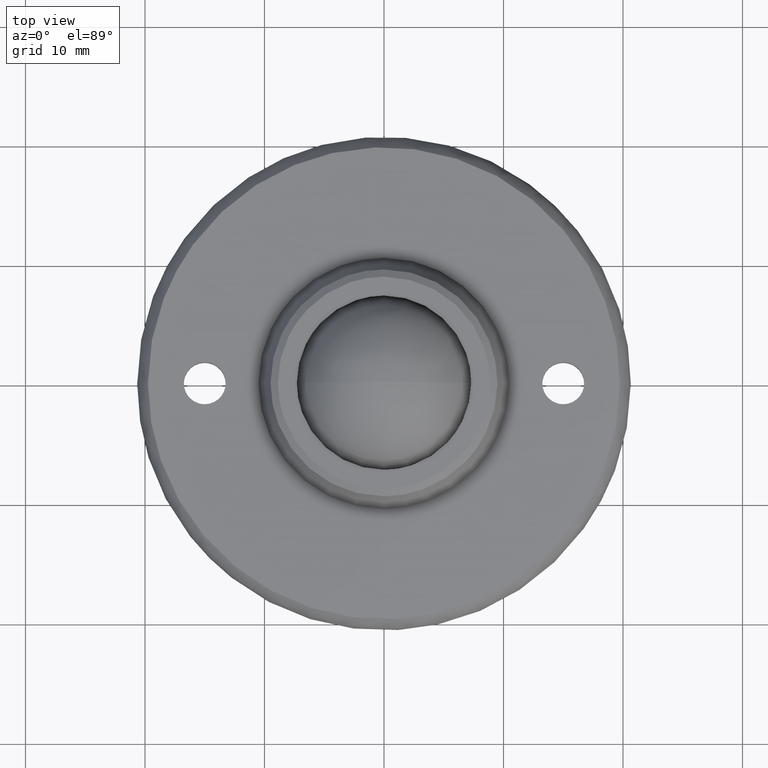
[diagram: clean part render]
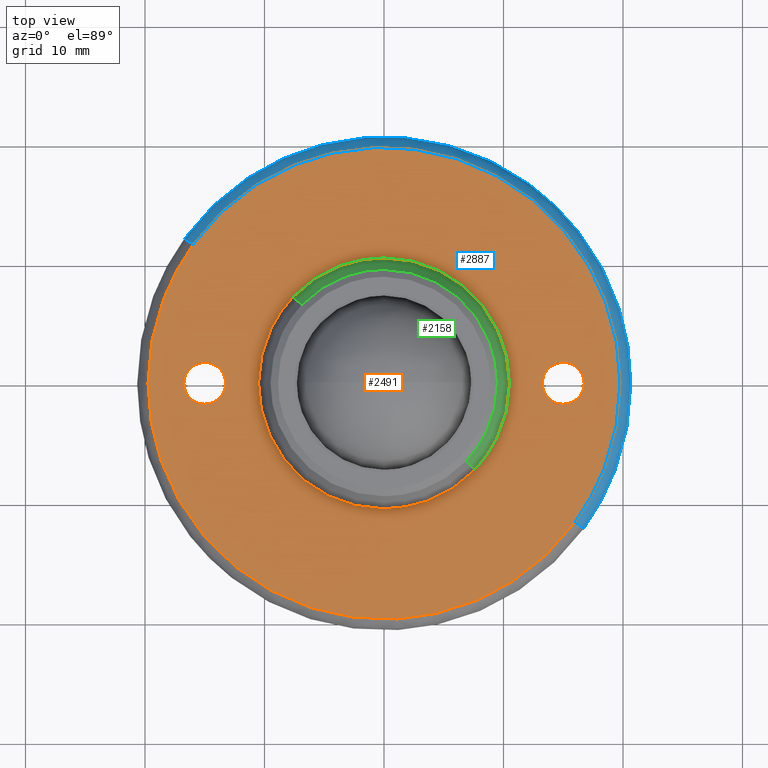
[diagram: same view with three faces highlighted in distinct colors, each labeled with its STEP entity id]
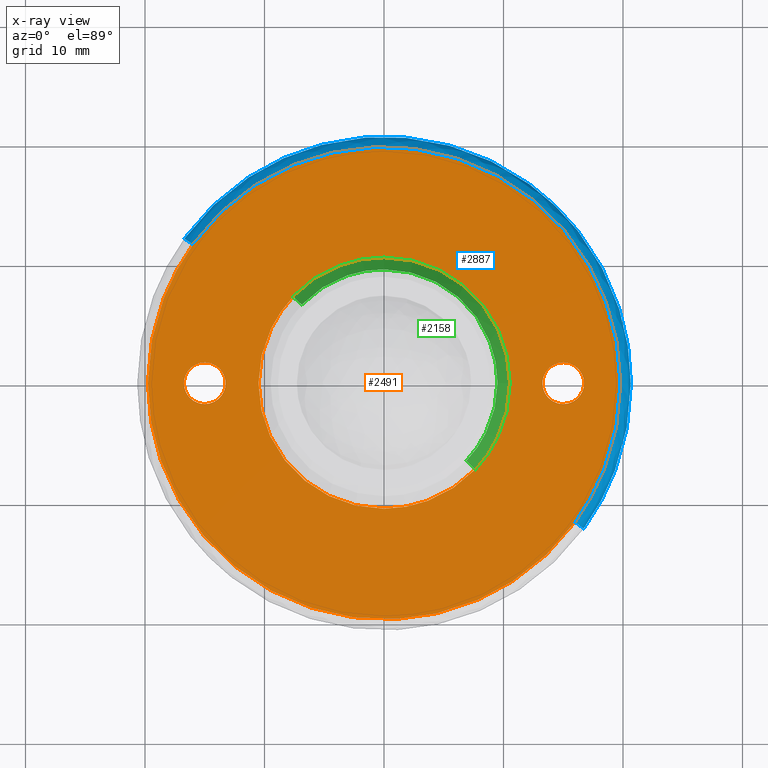
[diagram: x-ray of the same camera — body ghosted, the three highlighted faces saturated]
A machine part, top view with three faces highlighted in distinct colors.
The next image is the same camera in x-ray (body ghosted, the three faces saturated) — at least one of them is partly hidden behind the body in this view.
Their STEP definitions:

[orange] entity #2491 — the highlighted face is a freeform B-spline surface patch.
#1694=CARTESIAN_POINT('',(-16.269404962915431,-1.204620413948863,3.599999999996073));
#1695=VERTEX_POINT('',#1694);
#1696=CARTESIAN_POINT('',(-14.999999200706521,-1.749999999999818,3.600000000000050));
#1697=VERTEX_POINT('',#1696);
#1698=CARTESIAN_POINT('',(-16.269404962915431,-1.204620413948863,3.599999999996073));
#1699=CARTESIAN_POINT('',(-16.177760895185809,-1.301207005601152,3.599999999996368));
#1700=CARTESIAN_POINT('',(-15.932383955473989,-1.506894978354334,3.599999999997120));
#1701=CARTESIAN_POINT('',(-15.495623781965071,-1.704464052211512,3.599999999998494));
#1702=CARTESIAN_POINT('',(-15.155338060644750,-1.750028705529033,3.599999999999578));
#1703=CARTESIAN_POINT('',(-14.999999200706521,-1.749999999999818,3.600000000000050));
#1704=B_SPLINE_CURVE_WITH_KNOTS('',3,(#1698,#1699,#1700,#1701,#1702,#1703),.UNSPECIFIED.,.F.,.U.,(4,1,1,4),(0.000000018514215,0.399452218794578,0.954243068589066,1.420271852194132),.UNSPECIFIED.);
#1705=EDGE_CURVE('',#1695,#1697,#1704,.T.);
#1707=CARTESIAN_POINT('',(-13.250000000000000,0.0,3.600000000000050));
#1708=VERTEX_POINT('',#1707);
#1709=CARTESIAN_POINT('',(-14.999999200706521,-1.749999999999818,3.600000000000050));
#1710=CARTESIAN_POINT('',(-14.785209896812409,-1.750175990755756,3.600000000000055));
#1711=CARTESIAN_POINT('',(-14.491839420812800,-1.695308169850570,3.600000000000043));
#1712=CARTESIAN_POINT('',(-14.127588389047011,-1.525659126727517,3.600000000000055));
#1713=CARTESIAN_POINT('',(-13.853742416285661,-1.340295456441035,3.600000000000050));
#1714=CARTESIAN_POINT('',(-13.590144353608551,-1.063442993239072,3.600000000000062));
#1715=CARTESIAN_POINT('',(-13.419721044142360,-0.770967986737615,3.600000000000036));
#1716=CARTESIAN_POINT('',(-13.287672150433970,-0.422309167486829,3.600000000000066));
#1717=CARTESIAN_POINT('',(-13.249902029617170,-0.178978697143769,3.600000000000038));
#1718=CARTESIAN_POINT('',(-13.250000000000000,0.0,3.600000000000050));
#1719=B_SPLINE_CURVE_WITH_KNOTS('',3,(#1709,#1710,#1711,#1712,#1713,#1714,#1715,#1716,#1717,#1718),.UNSPECIFIED.,.F.,.U.,(4,1,1,1,1,1,1,4),(0.000000069933879,0.644275320278430,0.880516030686855,1.202663421937225,1.632151208185570,2.018730694473723,2.212018281056174,2.748910369540530),.UNSPECIFIED.);
#1720=EDGE_CURVE('',#1697,#1708,#1719,.T.);
#1722=CARTESIAN_POINT('',(-13.730595037084569,1.204620413948867,3.599999999996072));
#1723=VERTEX_POINT('',#1722);
#1724=CARTESIAN_POINT('',(-13.250000000000000,0.0,3.600000000000050));
#1725=CARTESIAN_POINT('',(-13.249919113959789,0.179925645343758,3.599999999999468));
#1726=CARTESIAN_POINT('',(-13.300597731409910,0.505123772794301,3.599999999998352));
#1727=CARTESIAN_POINT('',(-13.487898025243849,0.910238506262834,3.599999999997079));
#1728=CARTESIAN_POINT('',(-13.649610316947850,1.119295981370163,3.599999999996320));
#1729=CARTESIAN_POINT('',(-13.730595037084569,1.204620413948867,3.599999999996072));
#1730=B_SPLINE_CURVE_WITH_KNOTS('',3,(#1724,#1725,#1726,#1727,#1728,#1729),.UNSPECIFIED.,.F.,.U.,(4,1,1,4),(0.000000014968248,0.539764017491000,0.975719640504649,1.328639667887544),.UNSPECIFIED.);
#1731=EDGE_CURVE('',#1708,#1723,#1730,.T.);
#1804=CARTESIAN_POINT('',(-16.750000000000000,0.0,3.600000000000050));
#1805=VERTEX_POINT('',#1804);
#1806=CARTESIAN_POINT('',(-16.750000000000000,0.0,3.600000000000050));
#1807=CARTESIAN_POINT('',(-16.750088906151699,-0.179933594316056,3.599999999999454));
#1808=CARTESIAN_POINT('',(-16.709080825456802,-0.442829198333546,3.599999999998590));
#1809=CARTESIAN_POINT('',(-16.544529183063869,-0.855231248642012,3.599999999997229));
#1810=CARTESIAN_POINT('',(-16.393335631495429,-1.074164878460698,3.599999999996499));
#1811=CARTESIAN_POINT('',(-16.269404962915431,-1.204620413948863,3.599999999996073));
#1812=B_SPLINE_CURVE_WITH_KNOTS('',3,(#1806,#1807,#1808,#1809,#1810,#1811),.UNSPECIFIED.,.F.,.U.,(4,1,1,4),(0.000000014969230,0.539764017491336,0.788875854238998,1.328639667887532),.UNSPECIFIED.);
#1813=EDGE_CURVE('',#1805,#1695,#1812,.T.);
#1852=CARTESIAN_POINT('',(-15.000000799293460,1.749999999999818,3.600000000000050));
#1853=VERTEX_POINT('',#1852);
#1854=CARTESIAN_POINT('',(-13.730595037084569,1.204620413948867,3.599999999996072));
#1855=CARTESIAN_POINT('',(-13.857829615669161,1.338833460153947,3.599999999996471));
#1856=CARTESIAN_POINT('',(-14.125628860421010,1.543534360534318,3.599999999997321));
#1857=CARTESIAN_POINT('',(-14.570972108992310,1.715067667473699,3.599999999998677));
#1858=CARTESIAN_POINT('',(-14.859451718063969,1.750029233803764,3.599999999999620));
#1859=CARTESIAN_POINT('',(-15.000000799293460,1.749999999999818,3.600000000000050));
#1860=B_SPLINE_CURVE_WITH_KNOTS('',3,(#1854,#1855,#1856,#1857,#1858,#1859),.UNSPECIFIED.,.F.,.U.,(4,1,1,4),(0.000000018513659,0.554795016410769,0.998626929093786,1.420271852194109),.UNSPECIFIED.);
#1861=EDGE_CURVE('',#1723,#1853,#1860,.T.);
#1863=CARTESIAN_POINT('',(-15.000000799293460,1.749999999999818,3.600000000000050));
#1864=CARTESIAN_POINT('',(-15.164653208258070,1.750060865079466,3.600000000000042));
#1865=CARTESIAN_POINT('',(-15.443802689104460,1.710297435914410,3.600000000000065));
#1866=CARTESIAN_POINT('',(-15.817823705387511,1.560712400573623,3.600000000000040));
#1867=CARTESIAN_POINT('',(-16.112266545462042,1.366580276597230,3.600000000000049));
#1868=CARTESIAN_POINT('',(-16.346224433059611,1.132602577665410,3.600000000000059));
#1869=CARTESIAN_POINT('',(-16.538883505452262,0.855464467094937,3.600000000000047));
#1870=CARTESIAN_POINT('',(-16.702352003176038,0.486740490711484,3.600000000000052));
#1871=CARTESIAN_POINT('',(-16.750092118443149,0.178972957193750,3.600000000000049));
#1872=CARTESIAN_POINT('',(-16.750000000000000,0.0,3.600000000000050));
#1873=B_SPLINE_CURVE_WITH_KNOTS('',3,(#1863,#1864,#1865,#1866,#1867,#1868,#1869,#1870,#1871,#1872),.UNSPECIFIED.,.F.,.U.,(4,1,1,1,1,1,1,4),(0.000000069934494,0.493940710264975,0.837563445848550,1.202663421937620,1.546247251879123,1.825442815137830,2.212018281056193,2.748910369540544),.UNSPECIFIED.);
#1874=EDGE_CURVE('',#1853,#1805,#1873,.T.);
#1897=CARTESIAN_POINT('',(13.730595037084569,-1.204620413948863,3.599999999996072));
#1898=VERTEX_POINT('',#1897);
#1899=CARTESIAN_POINT('',(15.000000799293479,-1.749999999999818,3.600000000000050));
#1900=VERTEX_POINT('',#1899);
#1901=CARTESIAN_POINT('',(13.730595037084569,-1.204620413948863,3.599999999996072));
#1902=CARTESIAN_POINT('',(13.873068860405120,-1.355001710522369,3.599999999996524));
#1903=CARTESIAN_POINT('',(14.103226603685060,-1.523930054257186,3.599999999997245));
#1904=CARTESIAN_POINT('',(14.541443646474351,-1.705634096883141,3.599999999998607));
#1905=CARTESIAN_POINT('',(14.807648223508160,-1.750135218073063,3.599999999999453));
#1906=CARTESIAN_POINT('',(15.000000799293479,-1.749999999999818,3.600000000000050));
#1907=B_SPLINE_CURVE_WITH_KNOTS('',3,(#1901,#1902,#1903,#1904,#1905,#1906),.UNSPECIFIED.,.F.,.U.,(4,1,1,4),(0.000000018513966,0.621375303376397,0.843279801441058,1.420271852194129),.UNSPECIFIED.);
#1908=EDGE_CURVE('',#1898,#1900,#1907,.T.);
#1910=CARTESIAN_POINT('',(16.750000000000000,0.0,3.600000000000050));
#1911=VERTEX_POINT('',#1910);
#1912=CARTESIAN_POINT('',(15.000000799293479,-1.749999999999818,3.600000000000050));
#1913=CARTESIAN_POINT('',(15.214792850812740,-1.750189392436659,3.600000000000039));
#1914=CARTESIAN_POINT('',(15.536776536810590,-1.689926430075087,3.600000000000055));
#1915=CARTESIAN_POINT('',(15.955437770458021,-1.482349992017205,3.600000000000059));
#1916=CARTESIAN_POINT('',(16.287723937641729,-1.216502465375430,3.600000000000045));
#1917=CARTESIAN_POINT('',(16.559031613655652,-0.841146927973219,3.600000000000050));
#1918=CARTESIAN_POINT('',(16.717294985769481,-0.415187459542327,3.600000000000051));
#1919=CARTESIAN_POINT('',(16.750023964904610,-0.136012467801206,3.600000000000050));
#1920=CARTESIAN_POINT('',(16.750000000000000,0.0,3.600000000000050));
#1921=B_SPLINE_CURVE_WITH_KNOTS('',3,(#1912,#1913,#1914,#1915,#1916,#1917,#1918,#1919,#1920),.UNSPECIFIED.,.F.,.U.,(4,1,1,1,1,1,4),(0.000000069932609,0.644275320278040,0.966419830201724,1.395909745681975,1.911347306531346,2.340874251334744,2.748910369540531),.UNSPECIFIED.);
#1922=EDGE_CURVE('',#1900,#1911,#1921,.T.);
#1924=CARTESIAN_POINT('',(16.269404962915431,1.204620413948867,3.599999999996072));
#1925=VERTEX_POINT('',#1924);
#1926=CARTESIAN_POINT('',(16.750000000000000,0.0,3.600000000000050));
#1927=CARTESIAN_POINT('',(16.750082196096439,0.179926187695351,3.599999999999461));
#1928=CARTESIAN_POINT('',(16.699401005832879,0.505123138043951,3.599999999998368));
#1929=CARTESIAN_POINT('',(16.512102587883909,0.910239007139299,3.599999999997062));
#1930=CARTESIAN_POINT('',(16.350389531931580,1.119295698602271,3.599999999996347));
#1931=CARTESIAN_POINT('',(16.269404962915431,1.204620413948867,3.599999999996072));
#1932=B_SPLINE_CURVE_WITH_KNOTS('',3,(#1926,#1927,#1928,#1929,#1930,#1931),.UNSPECIFIED.,.F.,.U.,(4,1,1,4),(0.000000014968553,0.539764017491093,0.975719640504633,1.328639667887537),.UNSPECIFIED.);
#1933=EDGE_CURVE('',#1911,#1925,#1932,.T.);
#2004=CARTESIAN_POINT('',(13.250000000000000,0.0,3.600000000000050));
#2005=VERTEX_POINT('',#2004);
#2006=CARTESIAN_POINT('',(13.250000000000000,0.0,3.600000000000050));
#2007=CARTESIAN_POINT('',(13.249951563648310,-0.152245592959398,3.599999999999557));
#2008=CARTESIAN_POINT('',(13.282730973805000,-0.401332107308009,3.599999999998713));
#2009=CARTESIAN_POINT('',(13.432589785922980,-0.819724741106604,3.599999999997354));
#2010=CARTESIAN_POINT('',(13.597119704869220,-1.064140048465016,3.599999999996531));
#2011=CARTESIAN_POINT('',(13.730595037084569,-1.204620413948863,3.599999999996072));
#2012=B_SPLINE_CURVE_WITH_KNOTS('',3,(#2006,#2007,#2008,#2009,#2010,#2011),.UNSPECIFIED.,.F.,.U.,(4,1,1,4),(0.000000014968058,0.456723311524538,0.747356365793147,1.328639667887543),.UNSPECIFIED.);
#2013=EDGE_CURVE('',#2005,#1898,#2012,.T.);
#2052=CARTESIAN_POINT('',(14.999999200706540,1.749999999999818,3.600000000000050));
#2053=VERTEX_POINT('',#2052);
#2054=CARTESIAN_POINT('',(16.269404962915431,1.204620413948867,3.599999999996072));
#2055=CARTESIAN_POINT('',(16.177769773701659,1.301224952345194,3.599999999996361));
#2056=CARTESIAN_POINT('',(16.000824837486221,1.449427416328958,3.599999999996911));
#2057=CARTESIAN_POINT('',(15.688322976442100,1.620530285806086,3.599999999997892));
#2058=CARTESIAN_POINT('',(15.362455120456110,1.725146286953144,3.599999999998936));
#2059=CARTESIAN_POINT('',(15.118355523283601,1.750016439795063,3.599999999999656));
#2060=CARTESIAN_POINT('',(14.999999200706540,1.749999999999818,3.600000000000050));
#2061=B_SPLINE_CURVE_WITH_KNOTS('',3,(#2054,#2055,#2056,#2057,#2058,#2059,#2060),.UNSPECIFIED.,.F.,.U.,(4,1,1,1,4),(0.000000018512765,0.399452218793541,0.687954550396775,1.065203883632926,1.420271852194107),.UNSPECIFIED.);
#2062=EDGE_CURVE('',#1925,#2053,#2061,.T.);
#2064=CARTESIAN_POINT('',(14.999999200706540,1.749999999999818,3.600000000000050));
#2065=CARTESIAN_POINT('',(14.821020759623750,1.750099281621303,3.600000000000045));
#2066=CARTESIAN_POINT('',(14.563374457977650,1.710105282364584,3.600000000000060));
#2067=CARTESIAN_POINT('',(14.216109865214809,1.573673315181945,3.600000000000047));
#2068=CARTESIAN_POINT('',(13.901408014035180,1.385136493763935,3.600000000000068));
#2069=CARTESIAN_POINT('',(13.584153764527899,1.067892205630693,3.600000000000022));
#2070=CARTESIAN_POINT('',(13.319421306741971,0.586897275319255,3.600000000000035));
#2071=CARTESIAN_POINT('',(13.249811814470210,0.214780647619769,3.600000000000053));
#2072=CARTESIAN_POINT('',(13.250000000000000,0.0,3.600000000000050));
#2073=B_SPLINE_CURVE_WITH_KNOTS('',3,(#2064,#2065,#2066,#2067,#2068,#2069,#2070,#2071,#2072),.UNSPECIFIED.,.F.,.U.,(4,1,1,1,1,1,4),(0.000000069932564,0.536892823280124,0.773131900120843,1.116759263321885,1.632151208185626,2.104634893697377,2.748910369540543),.UNSPECIFIED.);
#2074=EDGE_CURVE('',#2053,#2005,#2073,.T.);
#2097=CARTESIAN_POINT('',(-7.616430756605407,7.227722912855947,3.600000062030274));
#2098=VERTEX_POINT('',#2097);
#2107=CARTESIAN_POINT('',(7.616430756605418,-7.227722912855958,3.600000062030269));
#2108=VERTEX_POINT('',#2107);
#2114=CARTESIAN_POINT('',(10.500000000000000,0.0,3.600000000000000));
#2115=VERTEX_POINT('',#2114);
#2116=CARTESIAN_POINT('',(10.500000000000000,0.0,3.600000000000000));
#2117=CARTESIAN_POINT('',(10.500032194768780,-0.539758065469961,3.600000004632332));
#2118=CARTESIAN_POINT('',(10.431008324087040,-1.432421942669624,3.600000012293467));
#2119=CARTESIAN_POINT('',(10.143782512037021,-2.816396251092285,3.600000024171060));
#2120=CARTESIAN_POINT('',(9.652578472667148,-4.254465132848694,3.600000036512962));
#2121=CARTESIAN_POINT('',(8.810354581094773,-5.813581671974200,3.600000049893724));
#2122=CARTESIAN_POINT('',(8.030874358022350,-6.791047436958253,3.600000058282602));
#2123=CARTESIAN_POINT('',(7.616430756605418,-7.227722912855958,3.600000062030269));
#2124=B_SPLINE_CURVE_WITH_KNOTS('',3,(#2116,#2117,#2118,#2119,#2120,#2121,#2122,#2123),.UNSPECIFIED.,.F.,.U.,(4,1,1,1,1,4),(7.796197E-009,1.619270914939987,2.678029414445461,4.235010562182127,6.165691783748542,7.971802971364556),.UNSPECIFIED.);
#2125=EDGE_CURVE('',#2115,#2108,#2124,.T.);
#2127=CARTESIAN_POINT('',(0.000000653008231,10.499999999999980,3.600000000000001));
#2128=VERTEX_POINT('',#2127);
#2129=CARTESIAN_POINT('',(0.000000653008231,10.499999999999980,3.600000000000001));
#2130=CARTESIAN_POINT('',(0.837580500461722,10.500229576908371,3.599999999999999));
#2131=CARTESIAN_POINT('',(2.104530537993412,10.347514033629171,3.600000000000001));
#2132=CARTESIAN_POINT('',(3.954144130979837,9.774058950607715,3.600000000000013));
#2133=CARTESIAN_POINT('',(5.502802885320640,9.012356813737517,3.599999999999955));
#2134=CARTESIAN_POINT('',(6.885037513249384,7.980566843326316,3.600000000000011));
#2135=CARTESIAN_POINT('',(7.852718495097665,7.000859258782389,3.600000000000006));
#2136=CARTESIAN_POINT('',(8.682434155611425,5.957683637272623,3.600000000000005));
#2137=CARTESIAN_POINT('',(9.395097186275585,4.776913054605704,3.599999999999989));
#2138=CARTESIAN_POINT('',(10.021118069032820,3.265545803643733,3.600000000000008));
#2139=CARTESIAN_POINT('',(10.409014699281670,1.696576993150347,3.599999999999961));
#2140=CARTESIAN_POINT('',(10.500034138091740,0.558368746314435,3.600000000000029));
#2141=CARTESIAN_POINT('',(10.500000000000000,0.0,3.600000000000000));
#2142=B_SPLINE_CURVE_WITH_KNOTS('',3,(#2129,#2130,#2131,#2132,#2133,#2134,#2135,#2136,#2137,#2138,#2139,#2140,#2141),.UNSPECIFIED.,.F.,.U.,(4,1,1,1,1,1,1,1,1,1,4),(0.000000031961449,2.512662473926152,3.801210005432305,5.798457684623353,7.666848503056523,8.955378755468455,9.921799588247140,11.661335910911900,13.078744510741821,14.818280833195740,16.493386936597251),.UNSPECIFIED.);
#2143=EDGE_CURVE('',#2128,#2115,#2142,.T.);
#2145=CARTESIAN_POINT('',(-7.616430756605407,7.227722912855947,3.600000062030274));
#2146=CARTESIAN_POINT('',(-7.158214326489439,7.710698672020449,3.600000058298446));
#2147=CARTESIAN_POINT('',(-6.216708557932888,8.530431372349986,3.600000050630545));
#2148=CARTESIAN_POINT('',(-4.764288906919860,9.398954436214503,3.600000038801672));
#2149=CARTESIAN_POINT('',(-3.285395388254977,10.012254999701151,3.600000026757153));
#2150=CARTESIAN_POINT('',(-1.730934083710247,10.404650484930240,3.600000014097195));
#2151=CARTESIAN_POINT('',(-0.576982104106711,10.500040402332800,3.600000004699099));
#2152=CARTESIAN_POINT('',(0.000000653008231,10.499999999999980,3.600000000000001));
#2153=B_SPLINE_CURVE_WITH_KNOTS('',3,(#2145,#2146,#2147,#2148,#2149,#2150,#2151,#2152),.UNSPECIFIED.,.F.,.U.,(4,1,1,1,1,4),(8.882706E-009,1.997246430850029,3.728202005292267,5.059688637190110,6.790640224867213,8.521584922000034),.UNSPECIFIED.);
#2154=EDGE_CURVE('',#2098,#2128,#2153,.T.);
#2178=CARTESIAN_POINT('',(-10.500000000000000,0.0,3.600000000000000));
#2179=VERTEX_POINT('',#2178);
#2180=CARTESIAN_POINT('',(-10.500000000000000,0.0,3.600000000000000));
#2181=CARTESIAN_POINT('',(-10.500099876129999,0.726605675973199,3.600000006235908));
#2182=CARTESIAN_POINT('',(-10.378823484626039,1.889104847446913,3.600000016212857));
#2183=CARTESIAN_POINT('',(-9.912978377296604,3.573084158555447,3.600000030665105));
#2184=CARTESIAN_POINT('',(-9.307995687323521,4.945527297264881,3.600000042443919));
#2185=CARTESIAN_POINT('',(-8.503967289224644,6.209696423567817,3.600000053293252));
#2186=CARTESIAN_POINT('',(-7.916532606183461,6.911499653189929,3.600000059316382));
#2187=CARTESIAN_POINT('',(-7.616430756605407,7.227722912855947,3.600000062030274));
#2188=B_SPLINE_CURVE_WITH_KNOTS('',3,(#2180,#2181,#2182,#2183,#2184,#2185,#2186,#2187),.UNSPECIFIED.,.F.,.U.,(4,1,1,1,1,4),(7.793158E-009,2.179790301962488,3.487664455328704,5.231491463929840,6.663930896228804,7.971802971364554),.UNSPECIFIED.);
#2189=EDGE_CURVE('',#2179,#2098,#2188,.T.);
#2191=CARTESIAN_POINT('',(-0.000000653008184,-10.499999999999980,3.600000000000000));
#2192=VERTEX_POINT('',#2191);
#2193=CARTESIAN_POINT('',(-0.000000653008184,-10.499999999999980,3.600000000000000));
#2194=CARTESIAN_POINT('',(-0.644274275037093,-10.500071466853321,3.599999999999980));
#2195=CARTESIAN_POINT('',(-1.782459854749296,-10.394895618122350,3.600000000000053));
#2196=CARTESIAN_POINT('',(-3.365926976335165,-9.982738335902557,3.599999999999926));
#2197=CARTESIAN_POINT('',(-4.577694714512497,-9.476432332972639,3.600000000000104));
#2198=CARTESIAN_POINT('',(-5.720718639921890,-8.833538246573431,3.599999999999959));
#2199=CARTESIAN_POINT('',(-6.730482089308772,-8.098959113831235,3.599999999999934));
#2200=CARTESIAN_POINT('',(-7.743372107237661,-7.134600441918418,3.600000000000059));
#2201=CARTESIAN_POINT('',(-8.664986776759013,-5.997506413064486,3.600000000000078));
#2202=CARTESIAN_POINT('',(-9.410405011501608,-4.736327003147515,3.599999999999772));
#2203=CARTESIAN_POINT('',(-9.970305236099669,-3.384587211709973,3.600000000000188));
#2204=CARTESIAN_POINT('',(-10.385712621785631,-1.846879783917589,3.599999999999898));
#2205=CARTESIAN_POINT('',(-10.500097909885840,-0.687230810993375,3.600000000000013));
#2206=CARTESIAN_POINT('',(-10.500000000000000,0.0,3.600000000000000));
#2207=B_SPLINE_CURVE_WITH_KNOTS('',3,(#2193,#2194,#2195,#2196,#2197,#2198,#2199,#2200,#2201,#2202,#2203,#2204,#2205,#2206),.UNSPECIFIED.,.F.,.U.,(4,1,1,1,1,1,1,1,1,1,1,4),(0.000000031943298,1.932808112855021,3.414646010796016,4.896476019498651,5.862893047636703,7.344726717925049,8.633255437526756,10.050645502164530,11.725765982256410,13.014314439356680,14.431715913545361,16.493386936597378),.UNSPECIFIED.);
#2208=EDGE_CURVE('',#2192,#2179,#2207,.T.);
#2210=CARTESIAN_POINT('',(7.616430756605418,-7.227722912855958,3.600000062030269));
#2211=CARTESIAN_POINT('',(7.066620802611884,-7.807363827097537,3.600000057552486));
#2212=CARTESIAN_POINT('',(6.159065032858267,-8.567436641247051,3.600000050161076));
#2213=CARTESIAN_POINT('',(4.586199734638912,-9.487843679110043,3.600000037351262));
#2214=CARTESIAN_POINT('',(3.160258828407494,-10.063332784267210,3.600000025738007));
#2215=CARTESIAN_POINT('',(1.531212556137125,-10.425427101000221,3.600000012470591));
#2216=CARTESIAN_POINT('',(0.510405576287235,-10.500020932003130,3.600000004156916));
#2217=CARTESIAN_POINT('',(-0.000000653008184,-10.499999999999980,3.600000000000000));
#2218=B_SPLINE_CURVE_WITH_KNOTS('',3,(#2210,#2211,#2212,#2213,#2214,#2215,#2216,#2217),.UNSPECIFIED.,.F.,.U.,(4,1,1,1,1,4),(8.882427E-009,2.396696376785061,3.528476429197472,5.459138187879716,6.990365980459423,8.521584921999999),.UNSPECIFIED.);
#2219=EDGE_CURVE('',#2108,#2192,#2218,.T.);
#2378=CARTESIAN_POINT('',(21.723994676106550,-21.719238586887151,3.600000000000000));
#2379=CARTESIAN_POINT('',(-21.723995735626389,-21.719238586887151,3.600000000000000));
#2380=CARTESIAN_POINT('',(21.723994676106550,21.719222020497341,3.600000000000000));
#2381=CARTESIAN_POINT('',(-21.723995735626389,21.719222020497341,3.600000000000000));
#2382=B_SPLINE_SURFACE_WITH_KNOTS('',1,1,((#2378,#2380),(#2379,#2381)),.UNSPECIFIED.,.F.,.F.,.U.,(2,2),(2,2),(0.0,43.447990411732931),(0.0,43.438460607384492),.UNSPECIFIED.);
#2383=CARTESIAN_POINT('',(15.978798927847890,-11.609276967530439,3.599999999898597));
#2384=VERTEX_POINT('',#2383);
#2385=CARTESIAN_POINT('',(-19.750881673487239,0.0,3.599999999999982));
#2386=VERTEX_POINT('',#2385);
#2387=CARTESIAN_POINT('',(15.978798927847890,-11.609276967530439,3.599999999898597));
#2388=CARTESIAN_POINT('',(15.484928143026700,-12.289050584951980,3.599999999899301));
#2389=CARTESIAN_POINT('',(14.244983646964700,-13.784962553411960,3.599999999901252));
#2390=CARTESIAN_POINT('',(12.096928694691041,-15.712754844636720,3.599999999905079));
#2391=CARTESIAN_POINT('',(9.951410230259000,-17.108484988734180,3.599999999909563));
#2392=CARTESIAN_POINT('',(7.958059955384329,-18.111828850513231,3.599999999913749));
#2393=CARTESIAN_POINT('',(5.843783459883923,-18.927445266517200,3.599999999918435));
#2394=CARTESIAN_POINT('',(3.165466248858462,-19.570482062811159,3.599999999924860));
#2395=CARTESIAN_POINT('',(0.323805350958507,-19.815177067993570,3.599999999931943));
#2396=CARTESIAN_POINT('',(-2.327815449840100,-19.665291705706320,3.599999999938861));
#2397=CARTESIAN_POINT('',(-4.747712300616689,-19.220874375558811,3.599999999945412));
#2398=CARTESIAN_POINT('',(-7.282668466279672,-18.431526955895929,3.599999999952869));
#2399=CARTESIAN_POINT('',(-9.683318326050518,-17.288905363150189,3.599999999958929));
#2400=CARTESIAN_POINT('',(-11.735703626371940,-15.931976303388231,3.599999999967509));
#2401=CARTESIAN_POINT('',(-13.233201912240290,-14.696843249028840,3.599999999968804));
#2402=CARTESIAN_POINT('',(-14.500372754271121,-13.448197487979961,3.599999999978190));
#2403=CARTESIAN_POINT('',(-15.736484643897210,-11.993704007676429,3.599999999977346));
#2404=CARTESIAN_POINT('',(-16.963400935812949,-10.205408508796980,3.599999999985538));
#2405=CARTESIAN_POINT('',(-18.182686803030400,-7.883421077435345,3.599999999988774));
#2406=CARTESIAN_POINT('',(-19.083101060623910,-5.347381250509576,3.599999999994022));
#2407=CARTESIAN_POINT('',(-19.632952562259518,-2.617677863600399,3.599999999997450));
#2408=CARTESIAN_POINT('',(-19.750923330865721,-0.904882417906830,3.599999999999240));
#2409=CARTESIAN_POINT('',(-19.750881673487239,0.0,3.599999999999982));
#2410=B_SPLINE_CURVE_WITH_KNOTS('',3,(#2387,#2388,#2389,#2390,#2391,#2392,#2393,#2394,#2395,#2396,#2397,#2398,#2399,#2400,#2401,#2402,#2403,#2404,#2405,#2406,#2407,#2408,#2409),.UNSPECIFIED.,.F.,.U.,(4,1,1,1,1,1,1,1,1,1,1,1,1,1,1,1,1,1,1,1,4),(0.000000047811895,2.520722357035012,5.817101110242618,8.628727292756985,10.179958120940499,12.506810219763350,15.415372150015660,18.420886316937072,21.038610228909000,23.365464795141410,25.789204535067530,28.988641014484610,31.315497865142468,33.157576120060732,34.805765755508318,36.647858583298813,38.877761741556021,41.301562518695050,44.500994059633612,46.924786451032851,49.639429650880537),.UNSPECIFIED.);
#2411=EDGE_CURVE('',#2384,#2386,#2410,.T.);
#2412=ORIENTED_EDGE('',*,*,#2411,.F.);
#2413=CARTESIAN_POINT('',(19.750881673487250,0.0,3.600000000000000));
#2414=VERTEX_POINT('',#2413);
#2415=CARTESIAN_POINT('',(19.750881673487250,0.0,3.600000000000000));
#2416=CARTESIAN_POINT('',(19.751080131936991,-1.325029168625870,3.599999999989539));
#2417=CARTESIAN_POINT('',(19.551720573944440,-3.296301596922579,3.599999999973436));
#2418=CARTESIAN_POINT('',(18.862302931443409,-5.992191322781125,3.599999999950368));
#2419=CARTESIAN_POINT('',(17.867951144186598,-8.627760451951136,3.599999999926990));
#2420=CARTESIAN_POINT('',(16.776809403491988,-10.511291130050971,3.599999999909349));
#2421=CARTESIAN_POINT('',(15.978798927847890,-11.609276967530439,3.599999999898597));
#2422=B_SPLINE_CURVE_WITH_KNOTS('',3,(#2415,#2416,#2417,#2418,#2419,#2420,#2421),.UNSPECIFIED.,.F.,.U.,(4,1,1,1,4),(4.057746E-009,3.975034009291482,5.914076156655463,8.337869989722920,12.409857412738010),.UNSPECIFIED.);
#2423=EDGE_CURVE('',#2414,#2384,#2422,.T.);
#2424=ORIENTED_EDGE('',*,*,#2423,.F.);
#2425=CARTESIAN_POINT('',(-15.978798927847890,11.609276967530430,3.599999999898597));
#2426=VERTEX_POINT('',#2425);
#2427=CARTESIAN_POINT('',(-15.978798927847890,11.609276967530430,3.599999999898597));
#2428=CARTESIAN_POINT('',(-15.314036716597251,12.524429447035120,3.599999999899536));
#2429=CARTESIAN_POINT('',(-14.102832006914790,13.921325999109850,3.599999999901494));
#2430=CARTESIAN_POINT('',(-12.345829881378780,15.452002696268741,3.599999999904705));
#2431=CARTESIAN_POINT('',(-10.773252585671820,16.588649502858988,3.599999999907839));
#2432=CARTESIAN_POINT('',(-8.737650287579980,17.788575778718450,3.599999999911975));
#2433=CARTESIAN_POINT('',(-6.337823188870217,18.775729135634680,3.599999999917489));
#2434=CARTESIAN_POINT('',(-4.017471210958059,19.368955627782739,3.599999999922787));
#2435=CARTESIAN_POINT('',(-1.940099483636068,19.692781253554749,3.599999999927916));
#2436=CARTESIAN_POINT('',(0.162274182042176,19.796072326407518,3.599999999933198));
#2437=CARTESIAN_POINT('',(2.293283976688102,19.649366008392029,3.599999999938793));
#2438=CARTESIAN_POINT('',(4.366732261627488,19.300058352990870,3.599999999944465));
#2439=CARTESIAN_POINT('',(6.799120029134477,18.620607485967248,3.599999999951064));
#2440=CARTESIAN_POINT('',(9.109586385383814,17.589640279572269,3.599999999958072));
#2441=CARTESIAN_POINT('',(11.123030446784959,16.355697462128290,3.599999999964223));
#2442=CARTESIAN_POINT('',(12.728464194879511,15.152798859545671,3.599999999969220));
#2443=CARTESIAN_POINT('',(14.384972161911550,13.606394495613690,3.599999999975238));
#2444=CARTESIAN_POINT('',(16.152061579960211,11.495914755174800,3.599999999981014));
#2445=CARTESIAN_POINT('',(17.620633677874221,9.086160946250956,3.599999999987014));
#2446=CARTESIAN_POINT('',(18.648777460151130,6.637847723708118,3.599999999991630));
#2447=CARTESIAN_POINT('',(19.225592598045932,4.648734115253406,3.599999999994790));
#2448=CARTESIAN_POINT('',(19.638803110882080,2.488407399367626,3.599999999997515));
#2449=CARTESIAN_POINT('',(19.750938025747519,0.969514605335719,3.599999999999454));
#2450=CARTESIAN_POINT('',(19.750881673487250,0.0,3.600000000000000));
#2451=B_SPLINE_CURVE_WITH_KNOTS('',3,(#2427,#2428,#2429,#2430,#2431,#2432,#2433,#2434,#2435,#2436,#2437,#2438,#2439,#2440,#2441,#2442,#2443,#2444,#2445,#2446,#2447,#2448,#2449,#2450),.UNSPECIFIED.,.F.,.U.,(4,1,1,1,1,1,1,1,1,1,1,1,1,1,1,1,1,1,1,1,1,4),(0.000000047828195,3.393312690441896,5.526243878365015,6.980543853105836,9.210436577086028,12.603762697466340,14.736709556800010,16.384895194613719,18.905660873945308,21.038610228910240,22.783724004232990,25.207517275848289,28.600841843439010,30.345973351155369,32.285015821781727,34.611865008468612,37.132620453112089,40.525951308708052,43.046701872738218,45.082690390536932,46.730895257385903,49.639429650880629),.UNSPECIFIED.);
#2452=EDGE_CURVE('',#2426,#2414,#2451,.T.);
#2453=ORIENTED_EDGE('',*,*,#2452,.F.);
#2454=CARTESIAN_POINT('',(-19.750881673487239,0.0,3.599999999999982));
#2455=CARTESIAN_POINT('',(-19.750990311438031,1.131114733595803,3.599999999991043));
#2456=CARTESIAN_POINT('',(-19.597744991496370,2.908528689683025,3.599999999976622));
#2457=CARTESIAN_POINT('',(-19.051849635164292,5.339422130741002,3.599999999956006));
#2458=CARTESIAN_POINT('',(-18.320382347846689,7.517772032970014,3.599999999936908));
#2459=CARTESIAN_POINT('',(-17.293437578644848,9.648326645940363,3.599999999917507));
#2460=CARTESIAN_POINT('',(-16.396706775776131,11.034086627063409,3.599999999904156));
#2461=CARTESIAN_POINT('',(-15.978798927847890,11.609276967530430,3.599999999898597));
#2462=B_SPLINE_CURVE_WITH_KNOTS('',3,(#2454,#2455,#2456,#2457,#2458,#2459,#2460,#2461),.UNSPECIFIED.,.F.,.U.,(4,1,1,1,1,4),(4.058796E-009,3.393321213643359,5.332366705060631,7.465301898378646,10.276916131413000,12.409857412738010),.UNSPECIFIED.);
#2463=EDGE_CURVE('',#2386,#2426,#2462,.T.);
#2464=ORIENTED_EDGE('',*,*,#2463,.F.);
#2465=EDGE_LOOP('',(#2412,#2424,#2453,#2464));
#2466=FACE_OUTER_BOUND('',#2465,.T.);
#2467=ORIENTED_EDGE('',*,*,#2143,.T.);
#2468=ORIENTED_EDGE('',*,*,#2125,.T.);
#2469=ORIENTED_EDGE('',*,*,#2219,.T.);
#2470=ORIENTED_EDGE('',*,*,#2208,.T.);
#2471=ORIENTED_EDGE('',*,*,#2189,.T.);
#2472=ORIENTED_EDGE('',*,*,#2154,.T.);
#2473=EDGE_LOOP('',(#2467,#2468,#2469,#2470,#2471,#2472));
#2474=FACE_BOUND('',#2473,.T.);
#2475=ORIENTED_EDGE('',*,*,#1922,.F.);
#2476=ORIENTED_EDGE('',*,*,#1908,.F.);
#2477=ORIENTED_EDGE('',*,*,#2013,.F.);
#2478=ORIENTED_EDGE('',*,*,#2074,.F.);
#2479=ORIENTED_EDGE('',*,*,#2062,.F.);
#2480=ORIENTED_EDGE('',*,*,#1933,.F.);
#2481=EDGE_LOOP('',(#2475,#2476,#2477,#2478,#2479,#2480));
#2482=FACE_BOUND('',#2481,.T.);
#2483=ORIENTED_EDGE('',*,*,#1720,.F.);
#2484=ORIENTED_EDGE('',*,*,#1705,.F.);
#2485=ORIENTED_EDGE('',*,*,#1813,.F.);
#2486=ORIENTED_EDGE('',*,*,#1874,.F.);
#2487=ORIENTED_EDGE('',*,*,#1861,.F.);
#2488=ORIENTED_EDGE('',*,*,#1731,.F.);
#2489=EDGE_LOOP('',(#2483,#2484,#2485,#2486,#2487,#2488));
#2490=FACE_BOUND('',#2489,.T.);
#2491=ADVANCED_FACE('',(#2466,#2474,#2482,#2490),#2382,.F.);

[blue] entity #2887 — the highlighted face is a freeform B-spline surface patch.
#2383=CARTESIAN_POINT('',(15.978798927847890,-11.609276967530439,3.599999999898597));
#2384=VERTEX_POINT('',#2383);
#2413=CARTESIAN_POINT('',(19.750881673487250,0.0,3.600000000000000));
#2414=VERTEX_POINT('',#2413);
#2415=CARTESIAN_POINT('',(19.750881673487250,0.0,3.600000000000000));
#2416=CARTESIAN_POINT('',(19.751080131936991,-1.325029168625870,3.599999999989539));
#2417=CARTESIAN_POINT('',(19.551720573944440,-3.296301596922579,3.599999999973436));
#2418=CARTESIAN_POINT('',(18.862302931443409,-5.992191322781125,3.599999999950368));
#2419=CARTESIAN_POINT('',(17.867951144186598,-8.627760451951136,3.599999999926990));
#2420=CARTESIAN_POINT('',(16.776809403491988,-10.511291130050971,3.599999999909349));
#2421=CARTESIAN_POINT('',(15.978798927847890,-11.609276967530439,3.599999999898597));
#2422=B_SPLINE_CURVE_WITH_KNOTS('',3,(#2415,#2416,#2417,#2418,#2419,#2420,#2421),.UNSPECIFIED.,.F.,.U.,(4,1,1,1,4),(4.057746E-009,3.975034009291482,5.914076156655463,8.337869989722920,12.409857412738010),.UNSPECIFIED.);
#2423=EDGE_CURVE('',#2414,#2384,#2422,.T.);
#2425=CARTESIAN_POINT('',(-15.978798927847890,11.609276967530430,3.599999999898597));
#2426=VERTEX_POINT('',#2425);
#2427=CARTESIAN_POINT('',(-15.978798927847890,11.609276967530430,3.599999999898597));
#2428=CARTESIAN_POINT('',(-15.314036716597251,12.524429447035120,3.599999999899536));
#2429=CARTESIAN_POINT('',(-14.102832006914790,13.921325999109850,3.599999999901494));
#2430=CARTESIAN_POINT('',(-12.345829881378780,15.452002696268741,3.599999999904705));
#2431=CARTESIAN_POINT('',(-10.773252585671820,16.588649502858988,3.599999999907839));
#2432=CARTESIAN_POINT('',(-8.737650287579980,17.788575778718450,3.599999999911975));
#2433=CARTESIAN_POINT('',(-6.337823188870217,18.775729135634680,3.599999999917489));
#2434=CARTESIAN_POINT('',(-4.017471210958059,19.368955627782739,3.599999999922787));
#2435=CARTESIAN_POINT('',(-1.940099483636068,19.692781253554749,3.599999999927916));
#2436=CARTESIAN_POINT('',(0.162274182042176,19.796072326407518,3.599999999933198));
#2437=CARTESIAN_POINT('',(2.293283976688102,19.649366008392029,3.599999999938793));
#2438=CARTESIAN_POINT('',(4.366732261627488,19.300058352990870,3.599999999944465));
#2439=CARTESIAN_POINT('',(6.799120029134477,18.620607485967248,3.599999999951064));
#2440=CARTESIAN_POINT('',(9.109586385383814,17.589640279572269,3.599999999958072));
#2441=CARTESIAN_POINT('',(11.123030446784959,16.355697462128290,3.599999999964223));
#2442=CARTESIAN_POINT('',(12.728464194879511,15.152798859545671,3.599999999969220));
#2443=CARTESIAN_POINT('',(14.384972161911550,13.606394495613690,3.599999999975238));
#2444=CARTESIAN_POINT('',(16.152061579960211,11.495914755174800,3.599999999981014));
#2445=CARTESIAN_POINT('',(17.620633677874221,9.086160946250956,3.599999999987014));
#2446=CARTESIAN_POINT('',(18.648777460151130,6.637847723708118,3.599999999991630));
#2447=CARTESIAN_POINT('',(19.225592598045932,4.648734115253406,3.599999999994790));
#2448=CARTESIAN_POINT('',(19.638803110882080,2.488407399367626,3.599999999997515));
#2449=CARTESIAN_POINT('',(19.750938025747519,0.969514605335719,3.599999999999454));
#2450=CARTESIAN_POINT('',(19.750881673487250,0.0,3.600000000000000));
#2451=B_SPLINE_CURVE_WITH_KNOTS('',3,(#2427,#2428,#2429,#2430,#2431,#2432,#2433,#2434,#2435,#2436,#2437,#2438,#2439,#2440,#2441,#2442,#2443,#2444,#2445,#2446,#2447,#2448,#2449,#2450),.UNSPECIFIED.,.F.,.U.,(4,1,1,1,1,1,1,1,1,1,1,1,1,1,1,1,1,1,1,1,1,4),(0.000000047828195,3.393312690441896,5.526243878365015,6.980543853105836,9.210436577086028,12.603762697466340,14.736709556800010,16.384895194613719,18.905660873945308,21.038610228910240,22.783724004232990,25.207517275848289,28.600841843439010,30.345973351155369,32.285015821781727,34.611865008468612,37.132620453112089,40.525951308708052,43.046701872738218,45.082690390536932,46.730895257385903,49.639429650880629),.UNSPECIFIED.);
#2452=EDGE_CURVE('',#2426,#2414,#2451,.T.);
#2783=CARTESIAN_POINT('',(-16.236278880340066,11.116635297678066,3.658268554828994));
#2784=CARTESIAN_POINT('',(-16.075608977398229,11.337778447251084,3.658268554828994));
#2785=CARTESIAN_POINT('',(-4.351544259474852,27.474569159434797,3.658268554828994));
#2786=CARTESIAN_POINT('',(11.561512449979968,15.913056709454821,3.658268554828994));
#2787=CARTESIAN_POINT('',(27.474569159434797,4.351544259474852,3.658268554828994));
#2788=CARTESIAN_POINT('',(15.750504441510836,-11.785246452709668,3.658268554828994));
#2789=CARTESIAN_POINT('',(15.589834538568418,-12.006389602283461,3.658268554828994));
#2790=CARTESIAN_POINT('',(-17.089569230505653,11.700865076910590,2.951260671540178));
#2791=CARTESIAN_POINT('',(-16.920455392918885,11.933630305466515,2.951260671540178));
#2792=CARTESIAN_POINT('',(-4.580237715179435,28.918482811785875,2.951260671540176));
#2793=CARTESIAN_POINT('',(12.169122548303219,16.749360263482661,2.951260671540177));
#2794=CARTESIAN_POINT('',(28.918482811785875,4.580237715179435,2.951260671540176));
#2795=CARTESIAN_POINT('',(16.578265134045814,-12.404614791140776,2.951260671540178));
#2796=CARTESIAN_POINT('',(16.409151296458447,-12.637380019697519,2.951260671540178));
#2797=CARTESIAN_POINT('',(-17.043703305827549,11.669461652456322,1.700114649660537));
#2798=CARTESIAN_POINT('',(-16.875043345247988,11.901602172905410,1.700114649660537));
#2799=CARTESIAN_POINT('',(-4.567945021594321,28.840869799043411,1.700114649660538));
#2800=CARTESIAN_POINT('',(12.136462388724542,16.704407410318868,1.700114649660537));
#2801=CARTESIAN_POINT('',(28.840869799043411,4.567945021594321,1.700114649660538));
#2802=CARTESIAN_POINT('',(16.533771475389131,-12.371322604544533,1.700114649660538));
#2803=CARTESIAN_POINT('',(16.365111514808969,-12.603463124994436,1.700114649660537));
#2811=(BOUNDED_SURFACE()B_SPLINE_SURFACE(2,2,((#2783,#2790,#2797),(#2784,#2791,#2798),(#2785,#2792,#2799),(#2786,#2793,#2800),(#2787,#2794,#2801),(#2788,#2795,#2802),(#2789,#2796,#2803)),.UNSPECIFIED.,.F.,.F.,.U.)B_SPLINE_SURFACE_WITH_KNOTS((3,1,2,1,3),(3,3),(0.0,0.684207342873501,34.894574486547761,69.104941630222029,69.789148973098008),(0.0,2.336368844615021),.UNSPECIFIED.)GEOMETRIC_REPRESENTATION_ITEM()RATIONAL_B_SPLINE_SURFACE(((0.938822114786726,0.820781740386973,0.939641520688299),(0.933386306618908,0.816029389522928,0.934200968135765),(0.656160090060203,0.573659495456638,0.656732787956539),(0.927950498451090,0.811277038658883,0.928760415583231),(0.656160090060203,0.573659495456638,0.656732787956539),(0.933386306618928,0.816029389522946,0.934200968135785),(0.938822114786765,0.820781740387008,0.939641520688339)))REPRESENTATION_ITEM('')SURFACE());
#2812=CARTESIAN_POINT('',(-16.706200933842648,12.137765459839560,1.800000000036884));
#2813=VERTEX_POINT('',#2812);
#2814=CARTESIAN_POINT('',(16.236857274690120,12.758799545462381,1.800001601971723));
#2815=VERTEX_POINT('',#2814);
#2816=CARTESIAN_POINT('',(-16.706200933842648,12.137765459839560,1.800000000036884));
#2817=CARTESIAN_POINT('',(-16.063981459462848,13.021840805158019,1.800000032065671));
#2818=CARTESIAN_POINT('',(-14.865416746765380,14.422583760512870,1.800000091612066));
#2819=CARTESIAN_POINT('',(-12.622165580220560,16.428644371621210,1.800000202495709));
#2820=CARTESIAN_POINT('',(-10.241611642334631,18.024998942783551,1.800000319678001));
#2821=CARTESIAN_POINT('',(-7.738543328749374,19.195271997654899,1.800000442425298));
#2822=CARTESIAN_POINT('',(-5.568732822003593,19.918911201081102,1.800000548563207));
#2823=CARTESIAN_POINT('',(-3.265724875275932,20.444852322153679,1.800000660994974));
#2824=CARTESIAN_POINT('',(-0.911823537833538,20.681104987539129,1.800000775634822));
#2825=CARTESIAN_POINT('',(1.374965717247490,20.633385352223641,1.800000886752189));
#2826=CARTESIAN_POINT('',(3.425202206050254,20.401070083612080,1.800000986201433));
#2827=CARTESIAN_POINT('',(5.636476561998400,19.916657185557149,1.800001093247654));
#2828=CARTESIAN_POINT('',(7.916017905933094,19.123792020331909,1.800001203329587));
#2829=CARTESIAN_POINT('',(10.310241727747851,17.961426817838682,1.800001318647526));
#2830=CARTESIAN_POINT('',(12.326136329606580,16.630050114688920,1.800001415419914));
#2831=CARTESIAN_POINT('',(14.412665137415440,14.862797250433060,1.800001515226266));
#2832=CARTESIAN_POINT('',(15.561759985241819,13.618034650189299,1.800001569942854));
#2833=CARTESIAN_POINT('',(16.236857274690120,12.758799545462381,1.800001601971723));
#2834=B_SPLINE_CURVE_WITH_KNOTS('',3,(#2816,#2817,#2818,#2819,#2820,#2821,#2822,#2823,#2824,#2825,#2826,#2827,#2828,#2829,#2830,#2831,#2832,#2833),.UNSPECIFIED.,.F.,.U.,(4,1,1,1,1,1,1,1,1,1,1,1,1,1,1,4),(0.000000027833778,3.278144232128511,5.513262834786147,9.014941663896554,11.846083170579190,13.783187230424380,15.869295619477841,18.923937072126812,20.861015067898229,22.723596369606700,25.107720211097138,27.640851856089469,29.950470724120120,33.079621744795553,34.867715073358532,38.145868870842612),.UNSPECIFIED.);
#2835=EDGE_CURVE('',#2813,#2815,#2834,.T.);
#2836=ORIENTED_EDGE('',*,*,#2835,.F.);
#2837=CARTESIAN_POINT('',(-15.978798927847890,11.609276967530430,3.599999999898597));
#2838=CARTESIAN_POINT('',(-16.077186609861659,11.680759802745129,3.508660514180928));
#2839=CARTESIAN_POINT('',(-16.278389906557571,11.826942554569211,3.278992076830779));
#2840=CARTESIAN_POINT('',(-16.483640739362581,11.976066013510030,2.908797035915382));
#2841=CARTESIAN_POINT('',(-16.657385823322951,12.102299206038410,2.408280860403423));
#2842=CARTESIAN_POINT('',(-16.706345038551611,12.137870158039380,2.049904154963773));
#2843=CARTESIAN_POINT('',(-16.706200933842648,12.137765459839560,1.800000000036884));
#2844=B_SPLINE_CURVE_WITH_KNOTS('',3,(#2837,#2838,#2839,#2840,#2841,#2842,#2843),.UNSPECIFIED.,.F.,.U.,(4,1,1,1,4),(0.000000024044498,0.456289348348419,1.010365665470859,1.336271105707883,2.085895683800693),.UNSPECIFIED.);
#2845=EDGE_CURVE('',#2426,#2813,#2844,.T.);
#2846=ORIENTED_EDGE('',*,*,#2845,.F.);
#2847=ORIENTED_EDGE('',*,*,#2452,.T.);
#2848=ORIENTED_EDGE('',*,*,#2423,.T.);
#2849=CARTESIAN_POINT('',(16.706200933842648,-12.137765459839560,1.800000000036884));
#2850=VERTEX_POINT('',#2849);
#2851=CARTESIAN_POINT('',(15.978798927847890,-11.609276967530439,3.599999999898597));
#2852=CARTESIAN_POINT('',(16.091253777083249,-11.690980197980160,3.495625863315251));
#2853=CARTESIAN_POINT('',(16.277189442019608,-11.826070366029031,3.277048476590409));
#2854=CARTESIAN_POINT('',(16.501781607513749,-11.989246125716720,2.872003849757168));
#2855=CARTESIAN_POINT('',(16.663584279515721,-12.106802648070429,2.386615552849966));
#2856=CARTESIAN_POINT('',(16.706264198798479,-12.137811424520731,2.006424979082908));
#2857=CARTESIAN_POINT('',(16.706200933842648,-12.137765459839560,1.800000000036884));
#2858=B_SPLINE_CURVE_WITH_KNOTS('',3,(#2851,#2852,#2853,#2854,#2855,#2856,#2857),.UNSPECIFIED.,.F.,.U.,(4,1,1,1,4),(0.000000024045125,0.521473938983934,0.945177417682933,1.466643216183083,2.085895683800691),.UNSPECIFIED.);
#2859=EDGE_CURVE('',#2384,#2850,#2858,.T.);
#2860=ORIENTED_EDGE('',*,*,#2859,.T.);
#2861=CARTESIAN_POINT('',(20.649999999999981,0.0,1.799999999999901));
#2862=VERTEX_POINT('',#2861);
#2863=CARTESIAN_POINT('',(20.649999999999981,0.0,1.799999999999901));
#2864=CARTESIAN_POINT('',(20.650085962244599,-1.115025411532891,1.800000000002966));
#2865=CARTESIAN_POINT('',(20.499098236478229,-2.973367049796546,1.800000000008249));
#2866=CARTESIAN_POINT('',(19.984193214611519,-5.320021377154810,1.800000000015143));
#2867=CARTESIAN_POINT('',(19.294722473934950,-7.478142060278436,1.800000000021742));
#2868=CARTESIAN_POINT('',(18.287072078592200,-9.736329165055208,1.800000000028833));
#2869=CARTESIAN_POINT('',(17.262322623457379,-11.372393824466521,1.800000000034300));
#2870=CARTESIAN_POINT('',(16.706200933842648,-12.137765459839560,1.800000000036884));
#2871=B_SPLINE_CURVE_WITH_KNOTS('',3,(#2863,#2864,#2865,#2866,#2867,#2868,#2869,#2870),.UNSPECIFIED.,.F.,.U.,(4,1,1,1,1,4),(3.940102E-009,3.345063419479523,5.575112162327852,7.196952938744381,10.136555720721020,12.974790685731721),.UNSPECIFIED.);
#2872=EDGE_CURVE('',#2862,#2850,#2871,.T.);
#2873=ORIENTED_EDGE('',*,*,#2872,.F.);
#2874=CARTESIAN_POINT('',(16.236857274690120,12.758799545462381,1.800001601971723));
#2875=CARTESIAN_POINT('',(16.856512225832208,11.970304997225201,1.800001489512864));
#2876=CARTESIAN_POINT('',(17.840071952611581,10.511222460412380,1.800001287737747));
#2877=CARTESIAN_POINT('',(18.919208986074580,8.363893328879735,1.800001005074335));
#2878=CARTESIAN_POINT('',(19.698327270064109,6.320212412527807,1.800000745671738));
#2879=CARTESIAN_POINT('',(20.427462581046932,3.581514924606049,1.800000410267839));
#2880=CARTESIAN_POINT('',(20.650186546377519,1.396832797426999,1.800000156635351));
#2881=CARTESIAN_POINT('',(20.649999999999981,0.0,1.799999999999901));
#2882=B_SPLINE_CURVE_WITH_KNOTS('',3,(#2874,#2875,#2876,#2877,#2878,#2879,#2880,#2881),.UNSPECIFIED.,.F.,.U.,(4,1,1,1,1,4),(4.155709E-009,3.008528339627580,5.264932018186030,7.198973874287318,9.562825006033723,13.753277970523500),.UNSPECIFIED.);
#2883=EDGE_CURVE('',#2815,#2862,#2882,.T.);
#2884=ORIENTED_EDGE('',*,*,#2883,.F.);
#2885=EDGE_LOOP('',(#2836,#2846,#2847,#2848,#2860,#2873,#2884));
#2886=FACE_OUTER_BOUND('',#2885,.T.);
#2887=ADVANCED_FACE('',(#2886),#2811,.T.);

[green] entity #2158 — the highlighted face is a freeform B-spline surface patch.
#1300=CARTESIAN_POINT('',(-6.886536491843849,6.535079118148802,5.780167566076573));
#1301=VERTEX_POINT('',#1300);
#1302=CARTESIAN_POINT('',(0.000000687324277,9.493768874635135,5.780167438290280));
#1303=VERTEX_POINT('',#1302);
#1304=CARTESIAN_POINT('',(-6.886536491843849,6.535079118148802,5.780167566076573));
#1305=CARTESIAN_POINT('',(-6.568877863832603,6.869844625047681,5.780167560182114));
#1306=CARTESIAN_POINT('',(-5.825131730587106,7.547134297269488,5.780167546381200));
#1307=CARTESIAN_POINT('',(-4.612408921113541,8.341939282476812,5.780167523877963));
#1308=CARTESIAN_POINT('',(-3.402874090909642,8.889037540610469,5.780167501433879));
#1309=CARTESIAN_POINT('',(-1.906082142586407,9.354007313817188,5.780167473659486));
#1310=CARTESIAN_POINT('',(-0.782561562970509,9.494005567033190,5.780167452811450));
#1311=CARTESIAN_POINT('',(0.000000687324277,9.493768874635135,5.780167438290280));
#1312=B_SPLINE_CURVE_WITH_KNOTS('',3,(#1304,#1305,#1306,#1307,#1308,#1309,#1310,#1311),.UNSPECIFIED.,.F.,.U.,(4,1,1,1,1,4),(9.194647E-009,1.384479809304890,3.009747209495836,4.334029104800483,5.357346675343261,7.704948444088454),.UNSPECIFIED.);
#1313=EDGE_CURVE('',#1301,#1303,#1312,.T.);
#1323=CARTESIAN_POINT('',(6.886536491843851,-6.535079118148804,5.780167566076571));
#1324=VERTEX_POINT('',#1323);
#1330=CARTESIAN_POINT('',(9.493768874635160,0.0,5.780167438290280));
#1331=VERTEX_POINT('',#1330);
#1332=CARTESIAN_POINT('',(9.493768874635160,0.0,5.780167438290280));
#1333=CARTESIAN_POINT('',(9.493907975948931,-0.694518992941778,5.780167451870836));
#1334=CARTESIAN_POINT('',(9.365458532506196,-1.858223918735113,5.780167474625811));
#1335=CARTESIAN_POINT('',(8.896982513877877,-3.407649879809551,5.780167504923136));
#1336=CARTESIAN_POINT('',(8.169290258156694,-4.957795199833360,5.780167535234548));
#1337=CARTESIAN_POINT('',(7.429388755656420,-5.963361677621980,5.780167554897267));
#1338=CARTESIAN_POINT('',(6.886536491843851,-6.535079118148804,5.780167566076571));
#1339=B_SPLINE_CURVE_WITH_KNOTS('',3,(#1332,#1333,#1334,#1335,#1336,#1337,#1338),.UNSPECIFIED.,.F.,.U.,(4,1,1,1,4),(8.013388E-009,2.083520218599382,3.491310199794465,4.842775146894692,7.207852845518382),.UNSPECIFIED.);
#1340=EDGE_CURVE('',#1331,#1324,#1339,.T.);
#1342=CARTESIAN_POINT('',(0.000000687324277,9.493768874635135,5.780167438290280));
#1343=CARTESIAN_POINT('',(0.699051898927009,9.493910995109632,5.780167438290294));
#1344=CARTESIAN_POINT('',(1.728123637867545,9.379562190194454,5.780167438290271));
#1345=CARTESIAN_POINT('',(3.132402856900066,8.986269997770059,5.780167438290285));
#1346=CARTESIAN_POINT('',(4.373079922576776,8.472412540190005,5.780167438290275));
#1347=CARTESIAN_POINT('',(5.800857925102116,7.592744858245464,5.780167438290277));
#1348=CARTESIAN_POINT('',(7.088196041071650,6.396821179265007,5.780167438290282));
#1349=CARTESIAN_POINT('',(8.039660345680915,5.113794039822019,5.780167438290279));
#1350=CARTESIAN_POINT('',(8.608453370796983,4.049624124532243,5.780167438290270));
#1351=CARTESIAN_POINT('',(9.034243806059848,2.984902108020280,5.780167438290321));
#1352=CARTESIAN_POINT('',(9.388529694818729,1.689312614319827,5.780167438290172));
#1353=CARTESIAN_POINT('',(9.493853141145927,0.621370500394025,5.780167438290397));
#1354=CARTESIAN_POINT('',(9.493768874635160,0.0,5.780167438290280));
#1355=B_SPLINE_CURVE_WITH_KNOTS('',3,(#1342,#1343,#1344,#1345,#1346,#1347,#1348,#1349,#1350,#1351,#1352,#1353,#1354),.UNSPECIFIED.,.F.,.U.,(4,1,1,1,1,1,1,1,1,1,4),(0.000000033178479,2.097111879677273,3.087412211353962,4.368985949829039,6.116592986411344,8.097179068214405,9.611765189375937,10.893332748571931,11.708878599442899,13.048702996388050,14.912800282148650),.UNSPECIFIED.);
#1356=EDGE_CURVE('',#1303,#1331,#1355,.T.);
#2079=CARTESIAN_POINT('',(-6.868289269233150,6.517763150450295,5.834671624247537));
#2080=CARTESIAN_POINT('',(-0.350526118782855,13.386052419683445,5.834671624247537));
#2081=CARTESIAN_POINT('',(6.517763150450295,6.868289269233150,5.834671624247537));
#2082=CARTESIAN_POINT('',(13.386052419683445,0.350526118782855,5.834671624247537));
#2083=CARTESIAN_POINT('',(6.868289269233150,-6.517763150450295,5.834671624247537));
#2084=CARTESIAN_POINT('',(-7.635134436288847,7.245472042142704,3.544133209393812));
#2085=CARTESIAN_POINT('',(-0.389662394146143,14.880606478431551,3.544133209393813));
#2086=CARTESIAN_POINT('',(7.245472042142704,7.635134436288847,3.544133209393812));
#2087=CARTESIAN_POINT('',(14.880606478431551,0.389662394146143,3.544133209393813));
#2088=CARTESIAN_POINT('',(7.635134436288847,-7.245472042142704,3.544133209393812));
#2096=(BOUNDED_SURFACE()B_SPLINE_SURFACE(2,1,((#2079,#2084),(#2080,#2085),(#2081,#2086),(#2082,#2087),(#2083,#2088)),.UNSPECIFIED.,.F.,.F.,.U.)B_SPLINE_SURFACE_WITH_KNOTS((3,2,3),(2,2),(0.0,17.439691064018159,34.879382128036319),(0.0,2.522732243264334),.UNSPECIFIED.)GEOMETRIC_REPRESENTATION_ITEM()RATIONAL_B_SPLINE_SURFACE(((1.0,1.0),(0.707106781186548,0.707106781186548),(1.0,1.0),(0.707106781186548,0.707106781186548),(1.0,1.0)))REPRESENTATION_ITEM('')SURFACE());
#2097=CARTESIAN_POINT('',(-7.616430756605407,7.227722912855947,3.600000062030274));
#2098=VERTEX_POINT('',#2097);
#2099=CARTESIAN_POINT('',(-6.886536491843849,6.535079118148802,5.780167566076573));
#2100=CARTESIAN_POINT('',(-7.616430756605407,7.227722912855947,3.600000062030274));
#2101=QUASI_UNIFORM_CURVE('',1,(#2099,#2100),.UNSPECIFIED.,.F.,.U.);
#2102=EDGE_CURVE('',#1301,#2098,#2101,.T.);
#2103=ORIENTED_EDGE('',*,*,#2102,.F.);
#2104=ORIENTED_EDGE('',*,*,#1313,.T.);
#2105=ORIENTED_EDGE('',*,*,#1356,.T.);
#2106=ORIENTED_EDGE('',*,*,#1340,.T.);
#2107=CARTESIAN_POINT('',(7.616430756605418,-7.227722912855958,3.600000062030269));
#2108=VERTEX_POINT('',#2107);
#2109=CARTESIAN_POINT('',(6.886536491843851,-6.535079118148804,5.780167566076571));
#2110=CARTESIAN_POINT('',(7.616430756605418,-7.227722912855958,3.600000062030269));
#2111=QUASI_UNIFORM_CURVE('',1,(#2109,#2110),.UNSPECIFIED.,.F.,.U.);
#2112=EDGE_CURVE('',#1324,#2108,#2111,.T.);
#2113=ORIENTED_EDGE('',*,*,#2112,.T.);
#2114=CARTESIAN_POINT('',(10.500000000000000,0.0,3.600000000000000));
#2115=VERTEX_POINT('',#2114);
#2116=CARTESIAN_POINT('',(10.500000000000000,0.0,3.600000000000000));
#2117=CARTESIAN_POINT('',(10.500032194768780,-0.539758065469961,3.600000004632332));
#2118=CARTESIAN_POINT('',(10.431008324087040,-1.432421942669624,3.600000012293467));
#2119=CARTESIAN_POINT('',(10.143782512037021,-2.816396251092285,3.600000024171060));
#2120=CARTESIAN_POINT('',(9.652578472667148,-4.254465132848694,3.600000036512962));
#2121=CARTESIAN_POINT('',(8.810354581094773,-5.813581671974200,3.600000049893724));
#2122=CARTESIAN_POINT('',(8.030874358022350,-6.791047436958253,3.600000058282602));
#2123=CARTESIAN_POINT('',(7.616430756605418,-7.227722912855958,3.600000062030269));
#2124=B_SPLINE_CURVE_WITH_KNOTS('',3,(#2116,#2117,#2118,#2119,#2120,#2121,#2122,#2123),.UNSPECIFIED.,.F.,.U.,(4,1,1,1,1,4),(7.796197E-009,1.619270914939987,2.678029414445461,4.235010562182127,6.165691783748542,7.971802971364556),.UNSPECIFIED.);
#2125=EDGE_CURVE('',#2115,#2108,#2124,.T.);
#2126=ORIENTED_EDGE('',*,*,#2125,.F.);
#2127=CARTESIAN_POINT('',(0.000000653008231,10.499999999999980,3.600000000000001));
#2128=VERTEX_POINT('',#2127);
#2129=CARTESIAN_POINT('',(0.000000653008231,10.499999999999980,3.600000000000001));
#2130=CARTESIAN_POINT('',(0.837580500461722,10.500229576908371,3.599999999999999));
#2131=CARTESIAN_POINT('',(2.104530537993412,10.347514033629171,3.600000000000001));
#2132=CARTESIAN_POINT('',(3.954144130979837,9.774058950607715,3.600000000000013));
#2133=CARTESIAN_POINT('',(5.502802885320640,9.012356813737517,3.599999999999955));
#2134=CARTESIAN_POINT('',(6.885037513249384,7.980566843326316,3.600000000000011));
#2135=CARTESIAN_POINT('',(7.852718495097665,7.000859258782389,3.600000000000006));
#2136=CARTESIAN_POINT('',(8.682434155611425,5.957683637272623,3.600000000000005));
#2137=CARTESIAN_POINT('',(9.395097186275585,4.776913054605704,3.599999999999989));
#2138=CARTESIAN_POINT('',(10.021118069032820,3.265545803643733,3.600000000000008));
#2139=CARTESIAN_POINT('',(10.409014699281670,1.696576993150347,3.599999999999961));
#2140=CARTESIAN_POINT('',(10.500034138091740,0.558368746314435,3.600000000000029));
#2141=CARTESIAN_POINT('',(10.500000000000000,0.0,3.600000000000000));
#2142=B_SPLINE_CURVE_WITH_KNOTS('',3,(#2129,#2130,#2131,#2132,#2133,#2134,#2135,#2136,#2137,#2138,#2139,#2140,#2141),.UNSPECIFIED.,.F.,.U.,(4,1,1,1,1,1,1,1,1,1,4),(0.000000031961449,2.512662473926152,3.801210005432305,5.798457684623353,7.666848503056523,8.955378755468455,9.921799588247140,11.661335910911900,13.078744510741821,14.818280833195740,16.493386936597251),.UNSPECIFIED.);
#2143=EDGE_CURVE('',#2128,#2115,#2142,.T.);
#2144=ORIENTED_EDGE('',*,*,#2143,.F.);
#2145=CARTESIAN_POINT('',(-7.616430756605407,7.227722912855947,3.600000062030274));
#2146=CARTESIAN_POINT('',(-7.158214326489439,7.710698672020449,3.600000058298446));
#2147=CARTESIAN_POINT('',(-6.216708557932888,8.530431372349986,3.600000050630545));
#2148=CARTESIAN_POINT('',(-4.764288906919860,9.398954436214503,3.600000038801672));
#2149=CARTESIAN_POINT('',(-3.285395388254977,10.012254999701151,3.600000026757153));
#2150=CARTESIAN_POINT('',(-1.730934083710247,10.404650484930240,3.600000014097195));
#2151=CARTESIAN_POINT('',(-0.576982104106711,10.500040402332800,3.600000004699099));
#2152=CARTESIAN_POINT('',(0.000000653008231,10.499999999999980,3.600000000000001));
#2153=B_SPLINE_CURVE_WITH_KNOTS('',3,(#2145,#2146,#2147,#2148,#2149,#2150,#2151,#2152),.UNSPECIFIED.,.F.,.U.,(4,1,1,1,1,4),(8.882706E-009,1.997246430850029,3.728202005292267,5.059688637190110,6.790640224867213,8.521584922000034),.UNSPECIFIED.);
#2154=EDGE_CURVE('',#2098,#2128,#2153,.T.);
#2155=ORIENTED_EDGE('',*,*,#2154,.F.);
#2156=EDGE_LOOP('',(#2103,#2104,#2105,#2106,#2113,#2126,#2144,#2155));
#2157=FACE_OUTER_BOUND('',#2156,.T.);
#2158=ADVANCED_FACE('',(#2157),#2096,.T.);